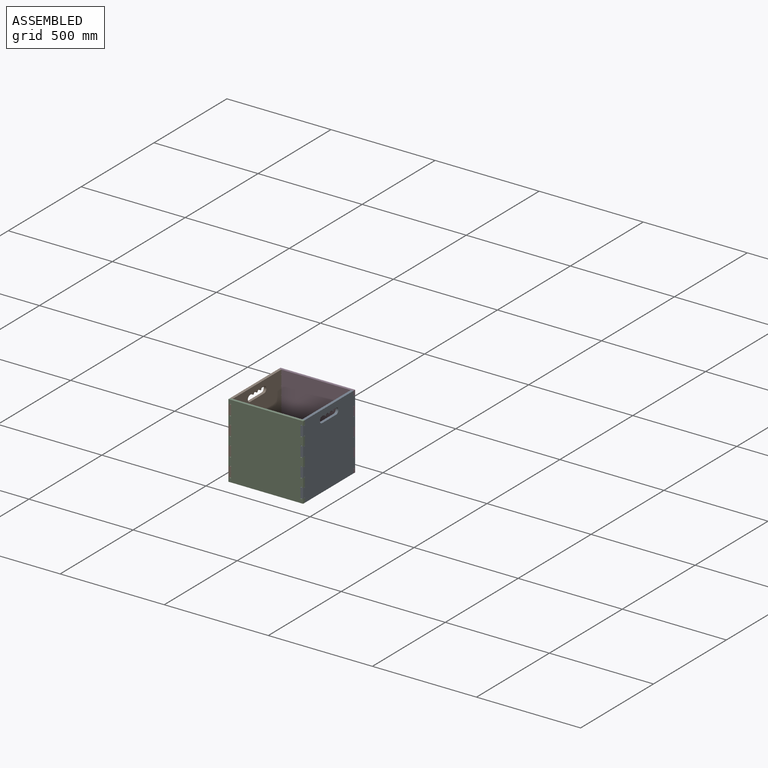
[diagram: assembled view]
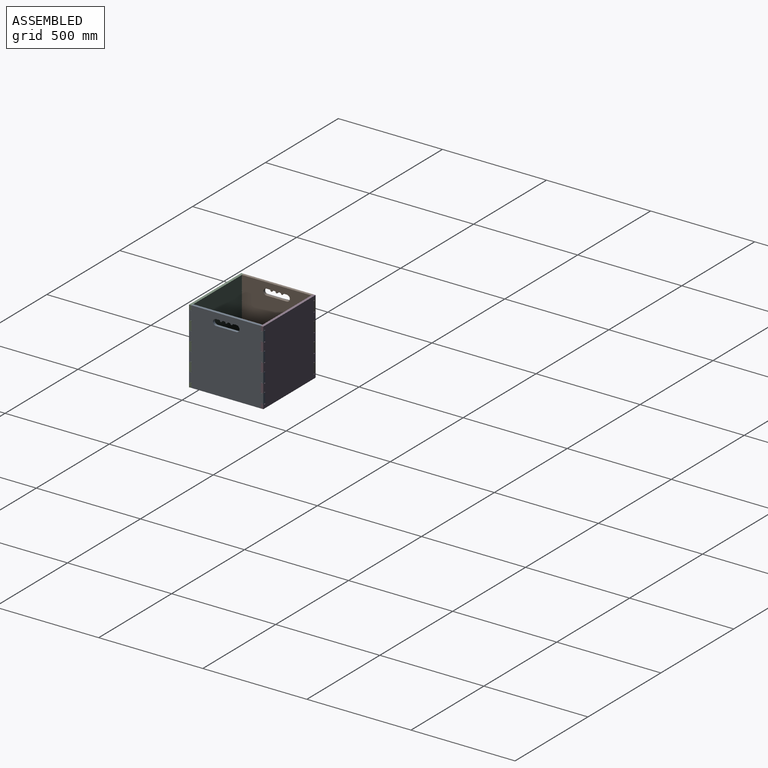
[diagram: assembled view, second angle]
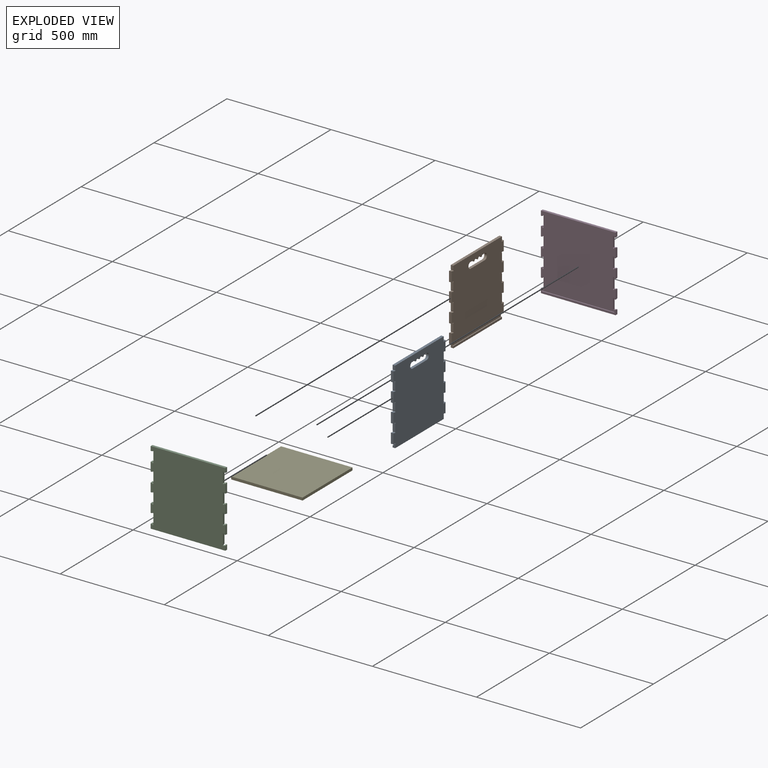
[diagram: exploded view]
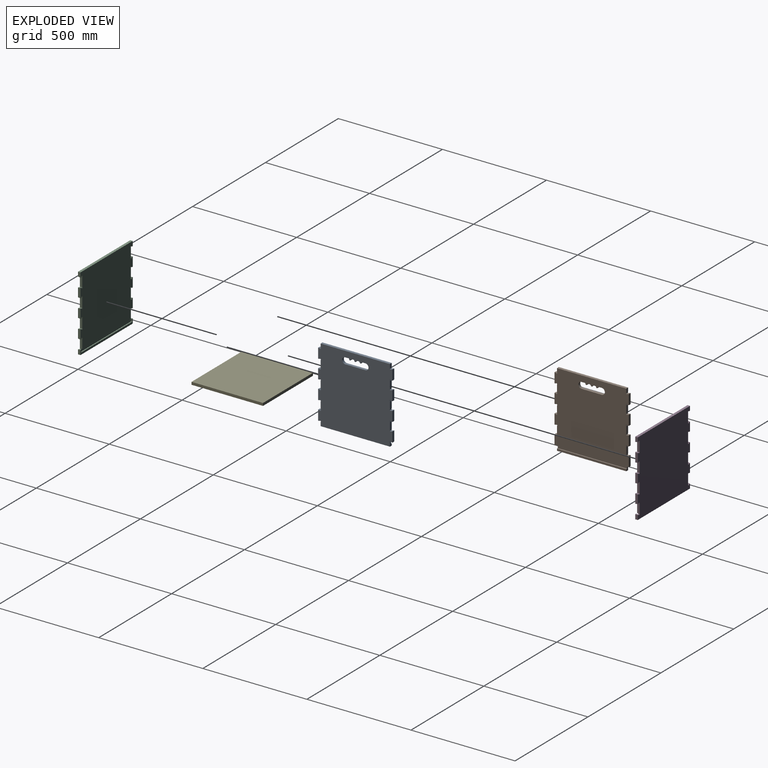
[diagram: exploded view, second angle]
ASSEMBLY  parts=5 mates=9
PART A: 74 faces, bbox 356.9x12.7x358.7 mm
  f0: plane 12.7x7.25mm, normal (0,0,-1), area 92.1mm2, adj f4,f5,f70,f71
  f1: plane 12.7x7.25mm, normal (0,0,-1), area 92.1mm2, adj f4,f5,f72,f73
  f2: plane 15.72x12.7mm, normal (0,0,-1), area 199.7mm2, adj f4,f5,f64,f69
  f3: plane 15.72x12.7mm, normal (0,0,-1), area 199.7mm2, adj f4,f5,f62,f66
  f4: plane 356.9x337.85mm, normal (0,-1,0), area 112944mm2, adj f0,f1,f2,f3,f6,f7,f8,f9
  f5: plane 358.7x356.9mm, normal (0,1,0), area 120338.1mm2, adj f0,f1,f2,f3,f6,f7,f8,f9
  f6: cylinder r=3.17mm len=12.7mm, axis (0,-1,0), area 111.1mm2, adj f4,f5,f12,f21,f59,f61
  f7: cylinder r=3.17mm len=12.7mm, axis (0,-1,0), area 111.1mm2, adj f4,f5,f39,f47,f59,f61
  f8: plane 17.63x12.7mm, normal (-1,0,0), area 223.9mm2, adj f4,f5,f15,f34
  f9: plane 35.26x12.7mm, normal (-1,0,0), area 447.8mm2, adj f4,f5,f28,f32
  f10: plane 12.7x7.22mm, normal (0.13,0,0.99), area 92.5mm2, adj f4,f5,f18,f33
  f11: plane 12.7x7.22mm, normal (0.13,0,0.99), area 92.5mm2, adj f4,f5,f16,f34
  f12: plane 12.7x7.22mm, normal (0.13,0,-0.99), area 92.5mm2, adj f4,f5,f6,f20
  f13: plane 12.7x7.22mm, normal (0.13,0,0.99), area 92.5mm2, adj f4,f5,f19,f32
  f14: plane 35.26x12.7mm, normal (-1,0,0), area 447.8mm2, adj f4,f5,f30,f31
  f15: plane 333.02x12.7mm, normal (0,0,1), area 4229.3mm2, adj f4,f5,f8,f35
  f16: plane 47.98x12.7mm, normal (-1,0,0), area 609.4mm2, adj f4,f5,f11,f26
  f17: plane 35.26x12.7mm, normal (-1,0,0), area 447.8mm2, adj f4,f5,f29,f33
  f18: plane 47.98x12.7mm, normal (-1,0,0), area 609.4mm2, adj f4,f5,f10,f27
  f19: plane 47.98x12.7mm, normal (-1,0,0), area 609.4mm2, adj f4,f5,f13,f25
  f20: plane 47.98x12.7mm, normal (-1,0,0), area 609.4mm2, adj f4,f5,f12,f24
  f21: plane 17.63x12.7mm, normal (-1,0,0), area 182.7mm2, adj f5,f6,f22,f23,f60,f61
  f22: plane 333.02x12.7mm, normal (0,0,-1), area 4229.3mm2, adj f5,f21,f23,f47
  f23: plane 333.02x9.53mm, normal (0,-1,0), area 3172mm2, adj f21,f22,f47,f60
  f24: plane 12.7x7.22mm, normal (0.13,0,0.99), area 92.5mm2, adj f4,f5,f20,f31
  f25: plane 12.7x7.22mm, normal (0.13,0,-0.99), area 92.5mm2, adj f4,f5,f19,f30
  f26: plane 12.7x7.22mm, normal (0.13,0,-0.99), area 92.5mm2, adj f4,f5,f16,f29
  f27: plane 12.7x7.22mm, normal (0.13,0,-0.99), area 92.5mm2, adj f4,f5,f18,f28
  f28: cylinder r=3.17mm len=12.7mm, axis (0,-1,0), area 137.2mm2, adj f4,f5,f9,f27
  f29: cylinder r=3.17mm len=12.7mm, axis (0,-1,0), area 137.2mm2, adj f4,f5,f17,f26
  f30: cylinder r=3.17mm len=12.7mm, axis (0,-1,0), area 137.2mm2, adj f4,f5,f14,f25
  f31: cylinder r=3.17mm len=12.7mm, axis (0,-1,0), area 137.2mm2, adj f4,f5,f14,f24
  f32: cylinder r=3.17mm len=12.7mm, axis (0,-1,0), area 137.2mm2, adj f4,f5,f9,f13
  f33: cylinder r=3.17mm len=12.7mm, axis (0,-1,0), area 137.2mm2, adj f4,f5,f10,f17
  f34: cylinder r=3.17mm len=12.7mm, axis (0,-1,0), area 137.2mm2, adj f4,f5,f8,f11
  f35: plane 17.63x12.7mm, normal (1,0,0), area 223.9mm2, adj f4,f5,f15,f58
  f36: plane 35.26x12.7mm, normal (1,0,0), area 447.8mm2, adj f4,f5,f52,f56
  f37: plane 12.7x7.22mm, normal (-0.13,0,0.99), area 92.5mm2, adj f4,f5,f44,f57
  f38: plane 12.7x7.22mm, normal (-0.13,0,0.99), area 92.5mm2, adj f4,f5,f42,f58
  f39: plane 12.7x7.22mm, normal (-0.13,0,-0.99), area 92.5mm2, adj f4,f5,f7,f46
  f40: plane 12.7x7.22mm, normal (-0.13,0,0.99), area 92.5mm2, adj f4,f5,f45,f56
  f41: plane 35.26x12.7mm, normal (1,0,0), area 447.8mm2, adj f4,f5,f54,f55
  f42: plane 47.98x12.7mm, normal (1,0,0), area 609.4mm2, adj f4,f5,f38,f50
  f43: plane 35.26x12.7mm, normal (1,0,0), area 447.8mm2, adj f4,f5,f53,f57
  f44: plane 47.98x12.7mm, normal (1,0,0), area 609.4mm2, adj f4,f5,f37,f51
  f45: plane 47.98x12.7mm, normal (1,0,0), area 609.4mm2, adj f4,f5,f40,f49
  f46: plane 47.98x12.7mm, normal (1,0,0), area 609.4mm2, adj f4,f5,f39,f48
  f47: plane 17.63x12.7mm, normal (1,0,0), area 182.7mm2, adj f5,f7,f22,f23,f60,f61
  f48: plane 12.7x7.22mm, normal (-0.13,0,0.99), area 92.5mm2, adj f4,f5,f46,f55
  f49: plane 12.7x7.22mm, normal (-0.13,0,-0.99), area 92.5mm2, adj f4,f5,f45,f54
  f50: plane 12.7x7.22mm, normal (-0.13,0,-0.99), area 92.5mm2, adj f4,f5,f42,f53
  f51: plane 12.7x7.22mm, normal (-0.13,0,-0.99), area 92.5mm2, adj f4,f5,f44,f52
  f52: cylinder r=3.17mm len=12.7mm, axis (0,-1,0), area 137.2mm2, adj f4,f5,f36,f51
  f53: cylinder r=3.17mm len=12.7mm, axis (0,-1,0), area 137.2mm2, adj f4,f5,f43,f50
  f54: cylinder r=3.17mm len=12.7mm, axis (0,-1,0), area 137.2mm2, adj f4,f5,f41,f49
  f55: cylinder r=3.17mm len=12.7mm, axis (0,-1,0), area 137.2mm2, adj f4,f5,f41,f48
  f56: cylinder r=3.17mm len=12.7mm, axis (0,-1,0), area 137.2mm2, adj f4,f5,f36,f40
  f57: cylinder r=3.17mm len=12.7mm, axis (0,-1,0), area 137.2mm2, adj f4,f5,f37,f43
  f58: cylinder r=3.17mm len=12.7mm, axis (0,-1,0), area 137.2mm2, adj f4,f5,f35,f38
  f59: plane 332.61x5.08mm, normal (0,0,-1), area 1689.7mm2, adj f4,f6,f7,f61
  f60: plane 333.02x5.08mm, normal (0,0,1), area 1691.7mm2, adj f21,f23,f47,f61
  f61: plane 333.02x12.7mm, normal (0,-1,0), area 4222.1mm2, adj f6,f7,f21,f47,f59,f60
  f62: cylinder r=15.01mm len=30.02mm, axis (0,-1,0), area 598.9mm2, adj f3,f4,f5,f63
  f63: plane 96.98x12.7mm, normal (0,0,1), area 1231.6mm2, adj f4,f5,f62,f64
  f64: cylinder r=15.01mm len=30.02mm, axis (0,-1,0), area 598.9mm2, adj f2,f4,f5,f63
  f65: cylinder r=4.19mm len=12.7mm, axis (0,-1,0), area 156.2mm2, adj f4,f5,f66,f70
  f66: cylinder r=3.17mm len=12.7mm, axis (0,-1,0), area 63.3mm2, adj f3,f4,f5,f65
  f67: cylinder r=4.19mm len=12.7mm, axis (0,-1,0), area 145.2mm2, adj f4,f5,f71,f72
  f68: cylinder r=4.19mm len=12.7mm, axis (0,-1,0), area 156.2mm2, adj f4,f5,f69,f73
  f69: cylinder r=3.17mm len=12.7mm, axis (0,-1,0), area 63.3mm2, adj f2,f4,f5,f68
  f70: cylinder r=5.08mm len=12.7mm, axis (0,-1,0), area 88mm2, adj f0,f4,f5,f65
  f71: cylinder r=5.08mm len=12.7mm, axis (0,-1,0), area 88mm2, adj f0,f4,f5,f67
  f72: cylinder r=5.08mm len=12.7mm, axis (0,-1,0), area 88mm2, adj f1,f4,f5,f67
  f73: cylinder r=5.08mm len=12.7mm, axis (0,-1,0), area 88mm2, adj f1,f4,f5,f68
PART B: same geometry as A
PART C: 82 faces, bbox 358.7x11.9x358.7 mm
  f0: plane 47.98x11.94mm, normal (-1,0,0), area 565.8mm2, adj f1,f3,f13,f22,f73,f77
  f1: plane 358.7x336.47mm, normal (0,1,0), area 115770.9mm2, adj f0,f6,f12,f15,f16,f18,f19,f20
  f2: plane 11.94x6.35mm, normal (0,-0.13,0.99), area 75.5mm2, adj f4,f5,f11,f13,f17,f77,f81
  f3: cylinder r=3.17mm len=6.86mm, axis (0,-1,0), area 68.4mm2, adj f0,f5,f13,f77
  f4: plane 1.47x0.19mm, normal (1,0,0), area 0.1mm2, adj f2,f17,f81
  f5: plane 6.86x0.9mm, normal (1,0,0), area 3.1mm2, adj f2,f3,f77
  f6: plane 47.98x11.94mm, normal (1,0,0), area 565.8mm2, adj f1,f8,f13,f35,f73,f77
  f7: plane 11.94x6.35mm, normal (0,-0.13,0.99), area 75.5mm2, adj f9,f10,f13,f17,f27,f77,f78
  f8: cylinder r=3.17mm len=6.86mm, axis (0,-1,0), area 68.4mm2, adj f6,f10,f13,f77
  f9: plane 1.47x0.19mm, normal (-1,0,0), area 0.1mm2, adj f7,f17,f78
  f10: plane 6.86x0.9mm, normal (-1,0,0), area 3.1mm2, adj f7,f8,f77
  f11: plane 22.42x11.94mm, normal (-1,0,0), area 258.3mm2, adj f2,f13,f14,f17
  f12: plane 44.84x11.94mm, normal (-1,0,0), area 516.5mm2, adj f1,f13,f18,f20
  f13: plane 358.7x358.7mm, normal (0,-1,0), area 123536.6mm2, adj f0,f2,f3,f6,f7,f8,f11,f12
  f14: plane 358.7x11.94mm, normal (0,0,-1), area 4282.1mm2, adj f11,f13,f17,f27
  f15: plane 44.84x11.94mm, normal (-1,0,0), area 516.5mm2, adj f1,f13,f19,f46
  f16: plane 47.98x11.94mm, normal (-1,0,0), area 572.8mm2, adj f1,f13,f24,f25
  f17: plane 358.7x22.42mm, normal (0,1,0), area 3554.4mm2, adj f2,f4,f7,f9,f11,f14,f27,f74
  f18: plane 11.94x6.35mm, normal (0,-0.13,0.99), area 76.5mm2, adj f1,f12,f13,f26
  f19: plane 11.94x6.35mm, normal (0,-0.13,-0.99), area 76.5mm2, adj f1,f13,f15,f23
  f20: plane 11.94x6.35mm, normal (0,-0.13,-0.99), area 76.5mm2, adj f1,f12,f13,f21
  f21: plane 11.94x1.57mm, normal (1,0,0), area 9.4mm2, adj f1,f20,f22
  f22: cylinder r=3.17mm len=11.94mm, axis (0,-1,0), area 119.1mm2, adj f0,f1,f13,f21
  f23: plane 11.94x1.57mm, normal (1,0,0), area 9.4mm2, adj f1,f19,f24
  f24: cylinder r=3.17mm len=11.94mm, axis (0,-1,0), area 119.1mm2, adj f1,f13,f16,f23
  f25: cylinder r=3.17mm len=11.94mm, axis (0,-1,0), area 119.1mm2, adj f1,f13,f16,f26
  f26: plane 11.94x1.57mm, normal (1,0,0), area 9.4mm2, adj f1,f18,f25
  f27: plane 22.42x11.94mm, normal (1,0,0), area 258.3mm2, adj f7,f13,f14,f17
  f28: plane 44.84x11.94mm, normal (1,0,0), area 516.5mm2, adj f1,f13,f31,f33
  f29: plane 44.84x11.94mm, normal (1,0,0), area 516.5mm2, adj f1,f13,f32,f62
  f30: plane 47.98x11.94mm, normal (1,0,0), area 572.8mm2, adj f1,f13,f37,f38
  f31: plane 11.94x6.35mm, normal (0,-0.13,0.99), area 76.5mm2, adj f1,f13,f28,f39
  f32: plane 11.94x6.35mm, normal (0,-0.13,-0.99), area 76.5mm2, adj f1,f13,f29,f36
  f33: plane 11.94x6.35mm, normal (0,-0.13,-0.99), area 76.5mm2, adj f1,f13,f28,f34
  f34: plane 11.94x1.57mm, normal (-1,0,0), area 9.4mm2, adj f1,f33,f35
  f35: cylinder r=3.17mm len=11.94mm, axis (0,-1,0), area 119.1mm2, adj f1,f6,f13,f34
  f36: plane 11.94x1.57mm, normal (-1,0,0), area 9.4mm2, adj f1,f32,f37
  f37: cylinder r=3.17mm len=11.94mm, axis (0,-1,0), area 119.1mm2, adj f1,f13,f30,f36
  f38: cylinder r=3.17mm len=11.94mm, axis (0,-1,0), area 119.1mm2, adj f1,f13,f30,f39
  f39: plane 11.94x1.57mm, normal (-1,0,0), area 9.4mm2, adj f1,f31,f38
  f40: plane 22.42x11.94mm, normal (-1,0,0), area 258.3mm2, adj f1,f13,f42,f47
  f41: plane 44.84x11.94mm, normal (-1,0,0), area 516.5mm2, adj f1,f13,f45,f48
  f42: plane 358.7x11.94mm, normal (0,0,1), area 4282.1mm2, adj f1,f13,f40,f57
  f43: plane 47.98x11.94mm, normal (-1,0,0), area 572.8mm2, adj f1,f13,f54,f55
  f44: plane 47.98x11.94mm, normal (-1,0,0), area 572.8mm2, adj f1,f13,f50,f51
  f45: plane 11.94x6.35mm, normal (0,-0.13,-0.99), area 76.5mm2, adj f1,f13,f41,f56
  f46: plane 11.94x6.35mm, normal (0,-0.13,0.99), area 76.5mm2, adj f1,f13,f15,f53
  f47: plane 11.94x6.35mm, normal (0,-0.13,-0.99), area 76.5mm2, adj f1,f13,f40,f52
  f48: plane 11.94x6.35mm, normal (0,-0.13,0.99), area 76.5mm2, adj f1,f13,f41,f49
  f49: plane 11.94x1.57mm, normal (1,0,0), area 9.4mm2, adj f1,f48,f50
  f50: cylinder r=3.17mm len=11.94mm, axis (0,-1,0), area 119.1mm2, adj f1,f13,f44,f49
  f51: cylinder r=3.17mm len=11.94mm, axis (0,-1,0), area 119.1mm2, adj f1,f13,f44,f52
  f52: plane 11.94x1.57mm, normal (1,0,0), area 9.4mm2, adj f1,f47,f51
  f53: plane 11.94x1.57mm, normal (1,0,0), area 9.4mm2, adj f1,f46,f54
  f54: cylinder r=3.17mm len=11.94mm, axis (0,-1,0), area 119.1mm2, adj f1,f13,f43,f53
  f55: cylinder r=3.17mm len=11.94mm, axis (0,-1,0), area 119.1mm2, adj f1,f13,f43,f56
  f56: plane 11.94x1.57mm, normal (1,0,0), area 9.4mm2, adj f1,f45,f55
  f57: plane 22.42x11.94mm, normal (1,0,0), area 258.3mm2, adj f1,f13,f42,f63
  f58: plane 44.84x11.94mm, normal (1,0,0), area 516.5mm2, adj f1,f13,f61,f64
  f59: plane 47.98x11.94mm, normal (1,0,0), area 572.8mm2, adj f1,f13,f70,f71
  f60: plane 47.98x11.94mm, normal (1,0,0), area 572.8mm2, adj f1,f13,f66,f67
  f61: plane 11.94x6.35mm, normal (0,-0.13,-0.99), area 76.5mm2, adj f1,f13,f58,f72
  f62: plane 11.94x6.35mm, normal (0,-0.13,0.99), area 76.5mm2, adj f1,f13,f29,f69
  f63: plane 11.94x6.35mm, normal (0,-0.13,-0.99), area 76.5mm2, adj f1,f13,f57,f68
  f64: plane 11.94x6.35mm, normal (0,-0.13,0.99), area 76.5mm2, adj f1,f13,f58,f65
  f65: plane 11.94x1.57mm, normal (-1,0,0), area 9.4mm2, adj f1,f64,f66
  f66: cylinder r=3.17mm len=11.94mm, axis (0,-1,0), area 119.1mm2, adj f1,f13,f60,f65
  f67: cylinder r=3.17mm len=11.94mm, axis (0,-1,0), area 119.1mm2, adj f1,f13,f60,f68
  f68: plane 11.94x1.57mm, normal (-1,0,0), area 9.4mm2, adj f1,f63,f67
  f69: plane 11.94x1.57mm, normal (-1,0,0), area 9.4mm2, adj f1,f62,f70
  f70: cylinder r=3.17mm len=11.94mm, axis (0,-1,0), area 119.1mm2, adj f1,f13,f59,f69
  f71: cylinder r=3.17mm len=11.94mm, axis (0,-1,0), area 119.1mm2, adj f1,f13,f59,f72
  f72: plane 11.94x1.57mm, normal (-1,0,0), area 9.4mm2, adj f1,f61,f71
  f73: plane 333.3x5.08mm, normal (0,0,-1), area 1693.2mm2, adj f0,f1,f6,f77
  f74: plane 6.99x5.08mm, normal (-1,0,0), area 35.5mm2, adj f17,f77,f78,f79
  f75: plane 342.19x5.08mm, normal (0,0,1), area 1738.3mm2, adj f17,f77,f79,f80
  f76: plane 6.99x5.08mm, normal (1,0,0), area 35.5mm2, adj f17,f77,f80,f81
  f77: plane 348.54x12.7mm, normal (0,1,0), area 4370.7mm2, adj f0,f2,f3,f5,f6,f7,f8,f10
  f78: cylinder r=3.17mm len=5.08mm, axis (0,-1,0), area 13.7mm2, adj f7,f9,f17,f74,f77
  f79: cylinder r=3.17mm len=5.08mm, axis (0,-1,0), area 25.3mm2, adj f17,f74,f75,f77
  f80: cylinder r=3.17mm len=5.08mm, axis (0,1,0), area 25.3mm2, adj f17,f75,f76,f77
  f81: cylinder r=3.17mm len=5.08mm, axis (0,1,0), area 13.7mm2, adj f2,f4,f17,f76,f77
PART D: same geometry as C
PART E: 6 faces, bbox 343.2x12.7x343.2 mm
  f0: plane 343.15x12.7mm, normal (0,0,-1), area 4358.1mm2, adj f1,f3,f4,f5
  f1: plane 343.15x12.7mm, normal (1,0,0), area 4358.1mm2, adj f0,f2,f4,f5
  f2: plane 343.15x12.7mm, normal (0,0,1), area 4358.1mm2, adj f1,f3,f4,f5
  f3: plane 343.15x12.7mm, normal (-1,0,0), area 4358.1mm2, adj f0,f2,f4,f5
  f4: plane 343.15x343.15mm, normal (0,-1,0), area 117754.7mm2, adj f0,f1,f2,f3
  f5: plane 343.15x343.15mm, normal (0,1,0), area 117754.7mm2, adj f0,f1,f2,f3
PLACE A rot(axis=(0,0,-1),90deg) t=(462.1,351.89,-365.29)mm
PLACE B rot(axis=(0,0,1),90deg) t=(103.4,18.87,-365.29)mm
PLACE C t=(103.4,18.87,-365.29)mm
PLACE D rot(axis=(0,0,-1),180deg) t=(462.1,351.89,-365.29)mm
PLACE E rot(axis=(-1,0,0),90deg) t=(282.91,185.39,-355.76)mm
MATE planar D.f1 <-> A.f8  axis (0,-1,0) through (462.1,351.89,-6.59)mm
MATE planar E.f5 <-> C.f75  axis (0,0,-1) through (282.91,185.39,-355.76)mm
MATE planar B.f15 <-> D.f42  axis (0,0,1) through (109.75,185.38,-6.59)mm
MATE planar A.f35 <-> C.f1  axis (0,-1,0) through (455.75,18.87,-15.4)mm
MATE planar E.f1 <-> A.f61  axis (1,0,0) through (454.48,185.39,-349.41)mm
MATE planar B.f8 <-> C.f1  axis (0,-1,0) through (116.1,18.87,-15.4)mm
MATE planar C.f42 <-> B.f15  axis (0,0,1) through (282.75,12.9,-6.59)mm
MATE planar A.f15 <-> C.f42  axis (0,0,1) through (455.75,185.38,-6.59)mm
MATE planar D.f77 <-> E.f2  axis (0,-1,0) through (282.75,356.97,-349.46)mm
